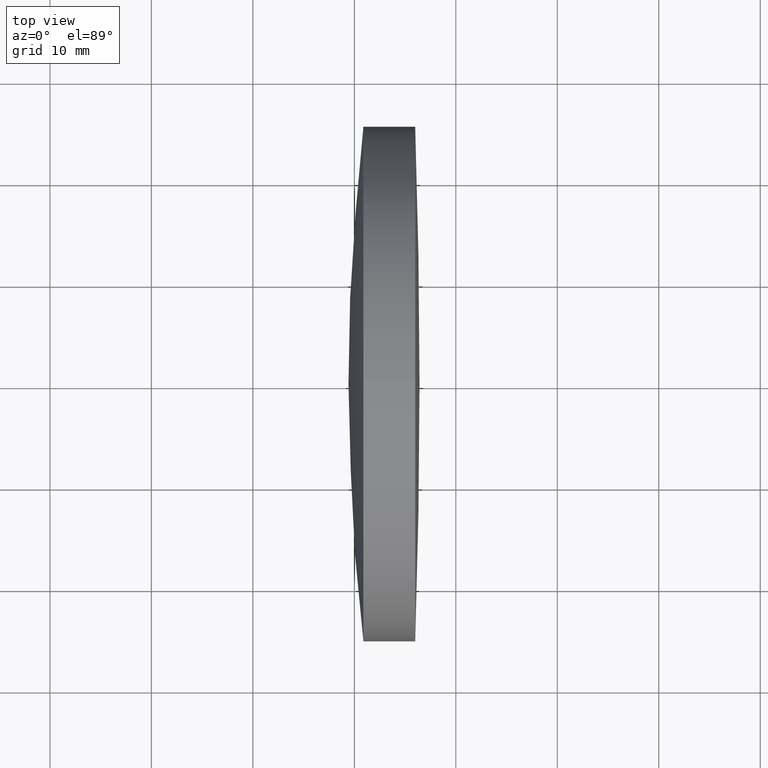
[diagram: clean part render]
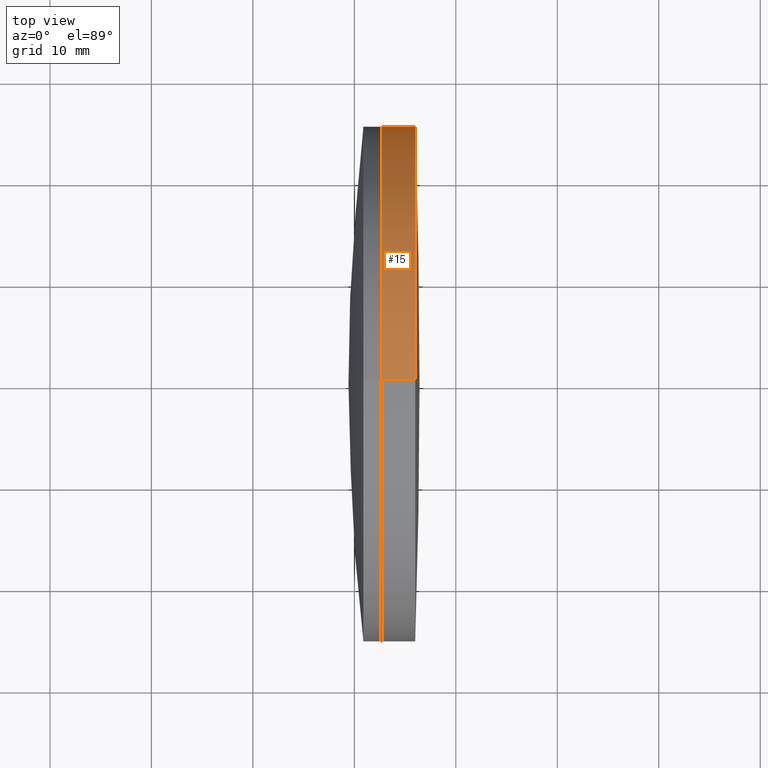
[diagram: same view with one face highlighted and labeled with its STEP entity id]
A machine part, top view. The second image highlights one B-rep face of the part: STEP entity #15.
In plain terms, the highlighted cylindrical surface (partial cylindrical patch) has radius 25.4 mm, axis along (-1, -0, -0).
Its self-contained STEP definition (entity closure, byte-faithful):
#5 = DIRECTION ( 'NONE',  ( -1.000000000000000000, -0.0000000000000000000, -0.0000000000000000000 ) ) ;
#6 = CYLINDRICAL_SURFACE ( 'NONE', #64, 25.39999999999986000 ) ;
#15 = ADVANCED_FACE ( 'NONE', ( #324 ), #6, .T. ) ;
#18 = DIRECTION ( 'NONE',  ( 0.0000000000000000000, 0.0000000000000000000, 1.000000000000000000 ) ) ;
#21 = VERTEX_POINT ( 'NONE', #95 ) ;
#22 = DIRECTION ( 'NONE',  ( -1.000000000000000000, -0.0000000000000000000, -0.0000000000000000000 ) ) ;
#31 = ORIENTED_EDGE ( 'NONE', *, *, #56, .F. ) ;
#42 = LINE ( 'NONE', #209, #233 ) ;
#48 = CARTESIAN_POINT ( 'NONE',  ( 445.9972164850302600, 0.0000000000000000000, 0.0000000000000000000 ) ) ;
#51 = EDGE_CURVE ( 'NONE', #21, #104, #248, .T. ) ;
#54 = CARTESIAN_POINT ( 'NONE',  ( 445.9972164850302600, 3.110602869834258700E-015, -25.39999999999983200 ) ) ;
#56 = EDGE_CURVE ( 'NONE', #21, #67, #42, .T. ) ;
#64 = AXIS2_PLACEMENT_3D ( 'NONE', #68, #22, #18 ) ;
#67 = VERTEX_POINT ( 'NONE', #345 ) ;
#68 = CARTESIAN_POINT ( 'NONE',  ( -0.5519199926577972300, 0.0000000000000000000, 0.0000000000000000000 ) ) ;
#76 = DIRECTION ( 'NONE',  ( 0.0000000000000000000, 0.0000000000000000000, 1.000000000000000000 ) ) ;
#85 = EDGE_CURVE ( 'NONE', #67, #105, #279, .T. ) ;
#95 = CARTESIAN_POINT ( 'NONE',  ( 445.9972164850302600, 0.0000000000000000000, 25.39999999999983200 ) ) ;
#103 = LINE ( 'NONE', #162, #194 ) ;
#104 = VERTEX_POINT ( 'NONE', #54 ) ;
#105 = VERTEX_POINT ( 'NONE', #328 ) ;
#130 = ORIENTED_EDGE ( 'NONE', *, *, #51, .T. ) ;
#150 = AXIS2_PLACEMENT_3D ( 'NONE', #215, #183, #178 ) ;
#162 = CARTESIAN_POINT ( 'NONE',  ( -0.5519199926577972300, 3.110602869834259900E-015, -25.39999999999986000 ) ) ;
#178 = DIRECTION ( 'NONE',  ( 0.0000000000000000000, 0.0000000000000000000, 1.000000000000000000 ) ) ;
#183 = DIRECTION ( 'NONE',  ( -1.000000000000000000, -0.0000000000000000000, -0.0000000000000000000 ) ) ;
#194 = VECTOR ( 'NONE', #5, 1000.000000000000000 ) ;
#208 = DIRECTION ( 'NONE',  ( -1.000000000000000000, -0.0000000000000000000, -0.0000000000000000000 ) ) ;
#209 = CARTESIAN_POINT ( 'NONE',  ( -0.5519199926577972300, 0.0000000000000000000, 25.39999999999986000 ) ) ;
#215 = CARTESIAN_POINT ( 'NONE',  ( 442.6868520807730600, 0.0000000000000000000, 0.0000000000000000000 ) ) ;
#233 = VECTOR ( 'NONE', #208, 1000.000000000000000 ) ;
#248 = CIRCLE ( 'NONE', #282, 25.39999999999983200 ) ;
#252 = ORIENTED_EDGE ( 'NONE', *, *, #85, .F. ) ;
#257 = EDGE_CURVE ( 'NONE', #104, #105, #103, .T. ) ;
#279 = CIRCLE ( 'NONE', #150, 25.39999999999989200 ) ;
#282 = AXIS2_PLACEMENT_3D ( 'NONE', #48, #327, #76 ) ;
#308 = EDGE_LOOP ( 'NONE', ( #130, #340, #252, #31 ) ) ;
#324 = FACE_OUTER_BOUND ( 'NONE', #308, .T. ) ;
#327 = DIRECTION ( 'NONE',  ( -1.000000000000000000, -0.0000000000000000000, -0.0000000000000000000 ) ) ;
#328 = CARTESIAN_POINT ( 'NONE',  ( 442.6868520807730600, 3.110602869834277700E-015, -25.40000000000000200 ) ) ;
#340 = ORIENTED_EDGE ( 'NONE', *, *, #257, .T. ) ;
#345 = CARTESIAN_POINT ( 'NONE',  ( 442.6868520807730600, 0.0000000000000000000, 25.40000000000000200 ) ) ;